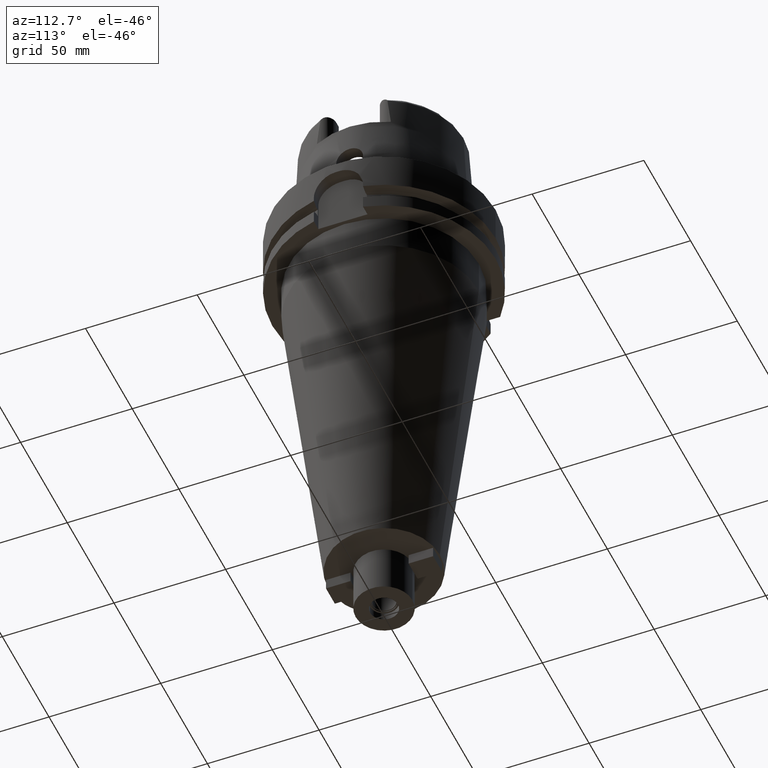
[diagram: clean part render]
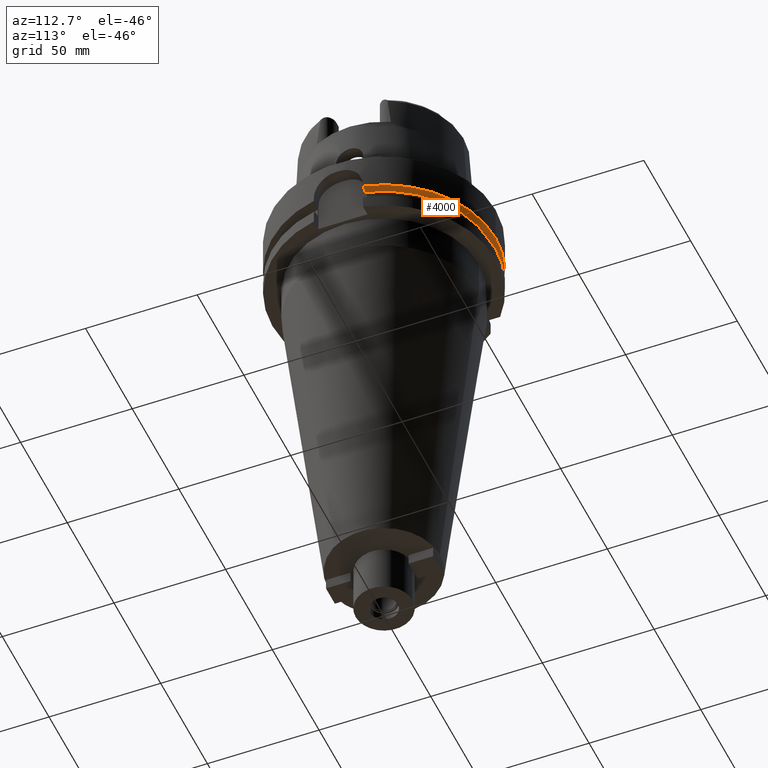
[diagram: same view with one face highlighted and labeled with its STEP entity id]
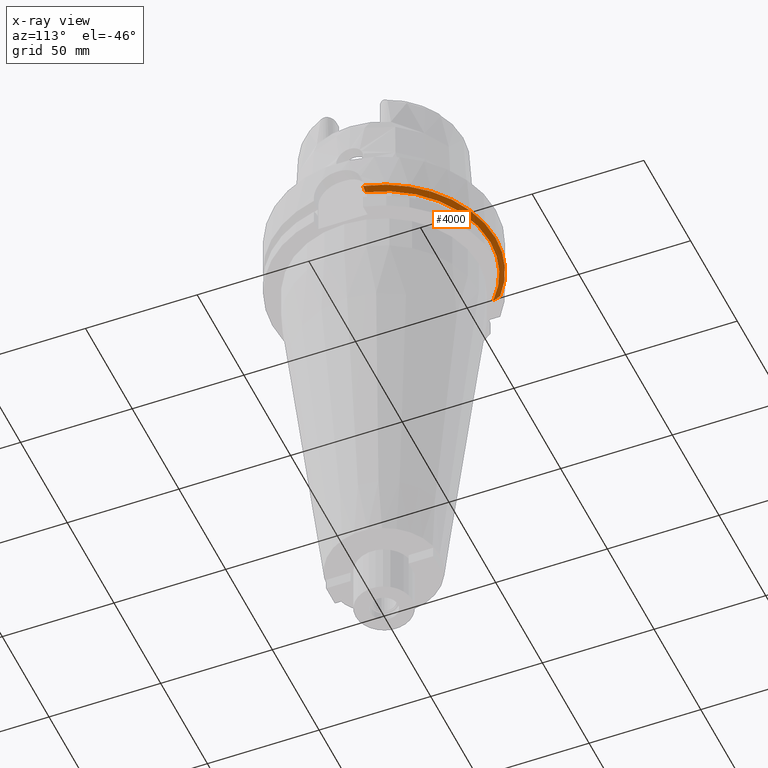
[diagram: x-ray of the same camera — body ghosted, the highlighted face saturated]
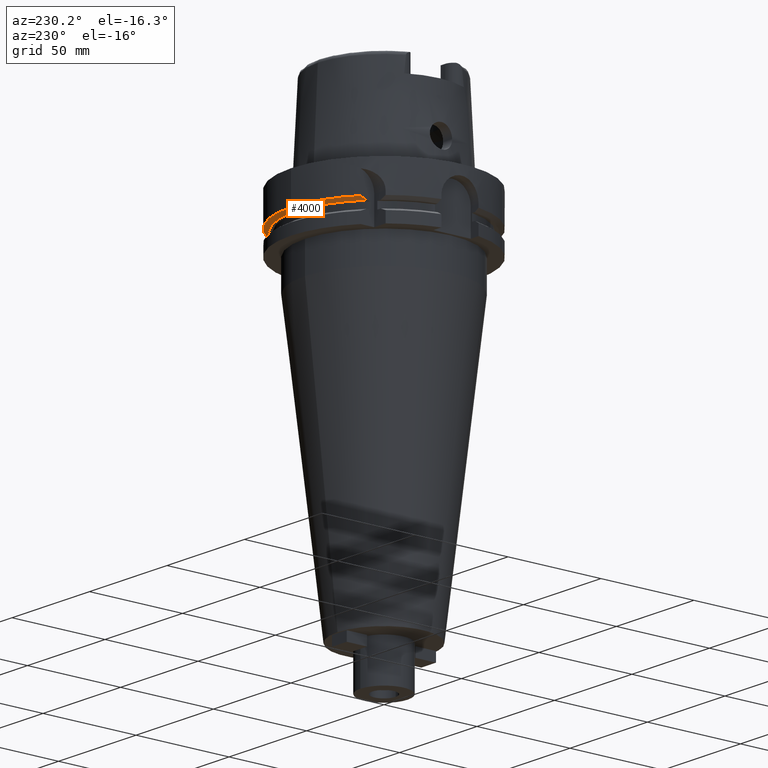
[diagram: same view with one face highlighted and labeled with its STEP entity id]
A machine part, auxiliary view. The second image highlights one B-rep face of the part: STEP entity #4000.
The next image is the same camera in x-ray: the body ghosted, the highlighted face saturated — about 0% of this face is hidden behind the body in this view.
A second angle (auxiliary view) of the same face is appended — the face is thin or edge-on in the first view.
In plain terms, the highlighted conical surface has half-angle 60 deg.
Its self-contained STEP definition (entity closure, byte-faithful):
#1324=CARTESIAN_POINT('',(-3.150000097281E1,3.571639618472E1,-1.8125E1));
#1325=CARTESIAN_POINT('',(-3.150000097281E1,3.606333863821E1,
-1.797477179943E1));
#1326=CARTESIAN_POINT('',(-3.150000002064E1,3.675646915239E1,
-1.767266204693E1));
#1327=CARTESIAN_POINT('',(-3.149999846856E1,3.779429574907E1,
-1.721518165955E1));
#1328=CARTESIAN_POINT('',(-3.150000355959E1,3.848477495946E1,
-1.690706900025E1));
#1329=CARTESIAN_POINT('',(-3.150000355959E1,3.882975374305E1,
-1.675239179145E1));
#1592=CARTESIAN_POINT('',(4.633477721644E1,1.1E1,-1.8125E1));
#1593=CARTESIAN_POINT('',(4.660608588337E1,1.1E1,-1.797259575630E1));
#1594=CARTESIAN_POINT('',(4.714858158706E1,1.1E1,-1.766770576961E1));
#1595=CARTESIAN_POINT('',(4.796198326449E1,1.1E1,-1.721016680325E1));
#1596=CARTESIAN_POINT('',(4.850402780016E1,1.1E1,-1.690501405597E1));
#1597=CARTESIAN_POINT('',(4.877499359303E1,1.1E1,-1.675240473581E1));
#1602=CARTESIAN_POINT('',(0.E0,0.E0,-1.675240473581E1));
#1603=DIRECTION('',(0.E0,0.E0,1.E0));
#1604=DIRECTION('',(9.754998718606E-1,2.2E-1,0.E0));
#1605=AXIS2_PLACEMENT_3D('',#1602,#1603,#1604);
#1610=CARTESIAN_POINT('',(0.E0,0.E0,-1.675240473581E1));
#1611=DIRECTION('',(0.E0,0.E0,1.E0));
#1612=DIRECTION('',(0.E0,1.E0,0.E0));
#1613=AXIS2_PLACEMENT_3D('',#1610,#1611,#1612);
#1641=CARTESIAN_POINT('',(0.E0,0.E0,-1.8125E1));
#1642=DIRECTION('',(0.E0,0.E0,1.E0));
#1643=DIRECTION('',(9.729578356533E-1,2.309827916554E-1,0.E0));
#1644=AXIS2_PLACEMENT_3D('',#1641,#1642,#1643);
#1649=CARTESIAN_POINT('',(0.E0,0.E0,-1.8125E1));
#1650=DIRECTION('',(0.E0,0.E0,1.E0));
#1651=DIRECTION('',(0.E0,1.E0,0.E0));
#1652=AXIS2_PLACEMENT_3D('',#1649,#1650,#1651);
#2623=CARTESIAN_POINT('',(-3.150000097281E1,3.571639618472E1,-1.8125E1));
#2624=VERTEX_POINT('',#2623);
#2625=VERTEX_POINT('',#1329);
#2703=CARTESIAN_POINT('',(4.633477721644E1,1.1E1,-1.8125E1));
#2704=VERTEX_POINT('',#2703);
#2705=CARTESIAN_POINT('',(1.065814103640E-14,4.762259526419E1,-1.8125E1));
#2706=VERTEX_POINT('',#2705);
#2713=VERTEX_POINT('',#1597);
#2714=CARTESIAN_POINT('',(0.E0,5.E1,-1.675240473581E1));
#2715=VERTEX_POINT('',#2714);
#3984=CARTESIAN_POINT('',(0.E0,0.E0,-1.743870236790E1));
#3985=DIRECTION('',(0.E0,0.E0,1.E0));
#3986=DIRECTION('',(0.E0,1.E0,0.E0));
#3987=AXIS2_PLACEMENT_3D('',#3984,#3985,#3986);
#3988=CONICAL_SURFACE('',#3987,4.881129763209E1,6.E1);
#3989=ORIENTED_EDGE('',*,*,#3723,.F.);
#3991=ORIENTED_EDGE('',*,*,#3990,.F.);
#3993=ORIENTED_EDGE('',*,*,#3992,.F.);
#3994=ORIENTED_EDGE('',*,*,#3763,.T.);
#3996=ORIENTED_EDGE('',*,*,#3995,.T.);
#3997=ORIENTED_EDGE('',*,*,#3963,.T.);
#3998=EDGE_LOOP('',(#3989,#3991,#3993,#3994,#3996,#3997));
#3999=FACE_OUTER_BOUND('',#3998,.F.);
#1330=B_SPLINE_CURVE_WITH_KNOTS('',3,(#1324,#1325,#1326,#1327,#1328,#1329),
.UNSPECIFIED.,.F.,.F.,(4,1,1,4),(0.E0,3.333333333333E-1,6.666666666667E-1,1.E0),
.UNSPECIFIED.);
#1598=B_SPLINE_CURVE_WITH_KNOTS('',3,(#1592,#1593,#1594,#1595,#1596,#1597),
.UNSPECIFIED.,.F.,.F.,(4,1,1,4),(0.E0,3.333333333333E-1,6.666666666667E-1,1.E0),
.UNSPECIFIED.);
#1606=CIRCLE('',#1605,5.E1);
#1614=CIRCLE('',#1613,5.E1);
#1645=CIRCLE('',#1644,4.762259526419E1);
#1653=CIRCLE('',#1652,4.762259526419E1);
#3723=EDGE_CURVE('',#2624,#2625,#1330,.T.);
#3763=EDGE_CURVE('',#2704,#2713,#1598,.T.);
#3963=EDGE_CURVE('',#2715,#2625,#1614,.T.);
#3990=EDGE_CURVE('',#2706,#2624,#1653,.T.);
#3992=EDGE_CURVE('',#2704,#2706,#1645,.T.);
#3995=EDGE_CURVE('',#2713,#2715,#1606,.T.);
#4000=ADVANCED_FACE('',(#3999),#3988,.T.);